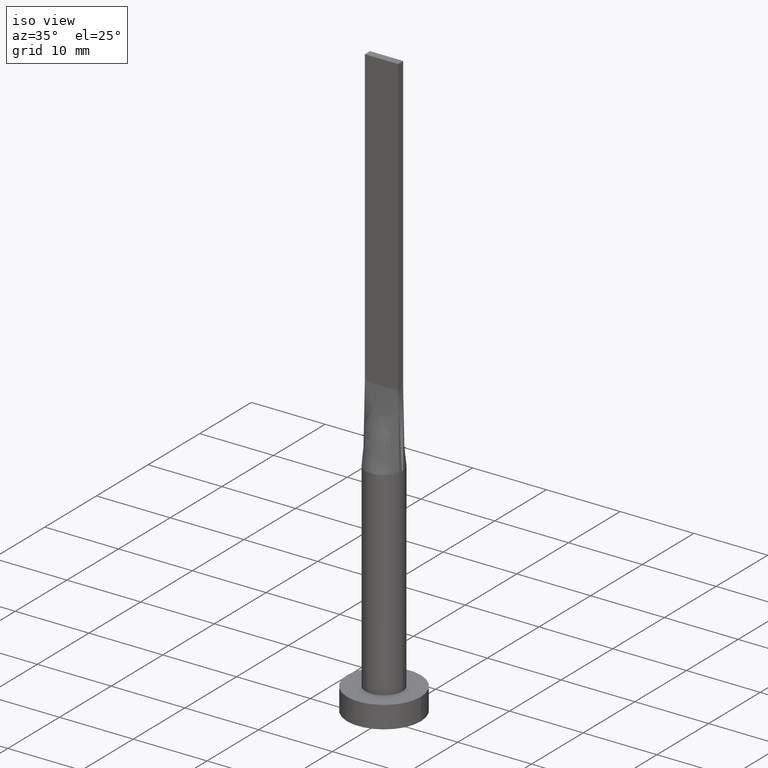
[diagram: clean part render]
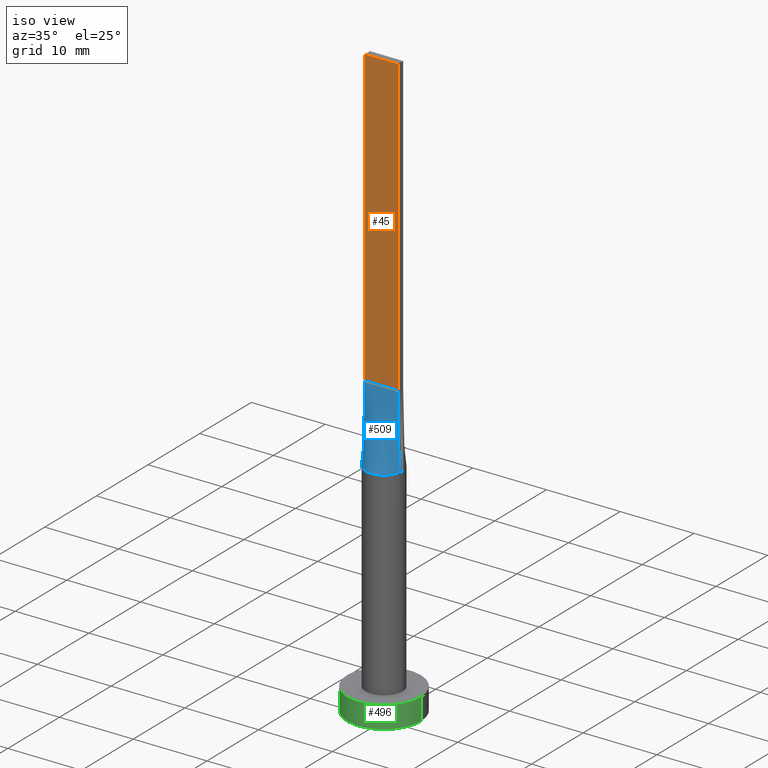
[diagram: same view with three faces highlighted in distinct colors, each labeled with its STEP entity id]
A machine part, iso view with three faces highlighted in distinct colors.
Their STEP definitions:

[orange] entity #45 — the highlighted planar face has unit normal (0, 1, -0).
#7 = CARTESIAN_POINT ( 'NONE',  ( 2.250000000000000000, -0.4999999999999997780, 80.00000000000000000 ) ) ;
#27 = CARTESIAN_POINT ( 'NONE',  ( -2.250000000000000000, -0.4999999999999994449, 80.00000000000000000 ) ) ;
#36 = DIRECTION ( 'NONE',  ( 7.228014483236697048E-17, 1.000000000000000000, -0.000000000000000000 ) ) ;
#45 = ADVANCED_FACE ( 'NONE', ( #409 ), #163, .F. ) ;
#115 = VERTEX_POINT ( 'NONE', #7 ) ;
#131 = AXIS2_PLACEMENT_3D ( 'NONE', #220, #36, #176 ) ;
#132 = DIRECTION ( 'NONE',  ( -0.000000000000000000, -0.000000000000000000, -1.000000000000000000 ) ) ;
#163 = PLANE ( 'NONE',  #131 ) ;
#164 = VECTOR ( 'NONE', #455, 1000.000000000000000 ) ;
#165 = LINE ( 'NONE', #575, #375 ) ;
#176 = DIRECTION ( 'NONE',  ( -1.000000000000000000, 7.228014483236697048E-17, 0.000000000000000000 ) ) ;
#197 = LINE ( 'NONE', #387, #204 ) ;
#204 = VECTOR ( 'NONE', #563, 1000.000000000000000 ) ;
#220 = CARTESIAN_POINT ( 'NONE',  ( -2.250000000000000000, -0.4999999999999994449, 80.00000000000000000 ) ) ;
#260 = VERTEX_POINT ( 'NONE', #384 ) ;
#289 = EDGE_CURVE ( 'NONE', #351, #115, #197, .T. ) ;
#351 = VERTEX_POINT ( 'NONE', #27 ) ;
#355 = DIRECTION ( 'NONE',  ( -0.000000000000000000, -0.000000000000000000, -1.000000000000000000 ) ) ;
#366 = EDGE_CURVE ( 'NONE', #115, #260, #447, .T. ) ;
#375 = VECTOR ( 'NONE', #355, 1000.000000000000000 ) ;
#384 = CARTESIAN_POINT ( 'NONE',  ( 2.250000000000000000, -0.4999999999999997780, 40.00000000000000000 ) ) ;
#385 = EDGE_CURVE ( 'NONE', #531, #260, #402, .T. ) ;
#387 = CARTESIAN_POINT ( 'NONE',  ( -2.250000000000000000, -0.4999999999999994449, 80.00000000000000000 ) ) ;
#402 = LINE ( 'NONE', #538, #164 ) ;
#409 = FACE_OUTER_BOUND ( 'NONE', #494, .T. ) ;
#434 = ORIENTED_EDGE ( 'NONE', *, *, #289, .F. ) ;
#447 = LINE ( 'NONE', #504, #539 ) ;
#455 = DIRECTION ( 'NONE',  ( 1.000000000000000000, -7.228014483236697048E-17, 0.000000000000000000 ) ) ;
#488 = ORIENTED_EDGE ( 'NONE', *, *, #366, .F. ) ;
#492 = CARTESIAN_POINT ( 'NONE',  ( -2.250000000000000000, -0.4999999999999994449, 40.00000000000000000 ) ) ;
#494 = EDGE_LOOP ( 'NONE', ( #574, #488, #434, #527 ) ) ;
#504 = CARTESIAN_POINT ( 'NONE',  ( 2.250000000000000000, -0.4999999999999997780, 80.00000000000000000 ) ) ;
#527 = ORIENTED_EDGE ( 'NONE', *, *, #571, .T. ) ;
#531 = VERTEX_POINT ( 'NONE', #492 ) ;
#538 = CARTESIAN_POINT ( 'NONE',  ( -2.250000000000000000, -0.4999999999999994449, 40.00000000000000000 ) ) ;
#539 = VECTOR ( 'NONE', #132, 1000.000000000000000 ) ;
#563 = DIRECTION ( 'NONE',  ( 1.000000000000000000, -7.228014483236697048E-17, 0.000000000000000000 ) ) ;
#571 = EDGE_CURVE ( 'NONE', #351, #531, #165, .T. ) ;
#574 = ORIENTED_EDGE ( 'NONE', *, *, #385, .T. ) ;
#575 = CARTESIAN_POINT ( 'NONE',  ( -2.250000000000000000, -0.4999999999999994449, 80.00000000000000000 ) ) ;

[blue] entity #509 — the highlighted face is a freeform B-spline surface patch.
#6 = CARTESIAN_POINT ( 'NONE',  ( 0.000000000000000000, 0.000000000000000000, 30.00000000000000000 ) ) ;
#11 = CARTESIAN_POINT ( 'NONE',  ( 2.440706242928429415, -0.5423794613208688942, 30.00000000000000000 ) ) ;
#14 = CIRCLE ( 'NONE', #331, 2.500000000000000000 ) ;
#20 = CARTESIAN_POINT ( 'NONE',  ( -0.9375000000000006661, -0.4999999999999995559, 39.99999999999999289 ) ) ;
#21 = CARTESIAN_POINT ( 'NONE',  ( -2.345233825229941171, -0.5211630722733197052, 35.00000000000000000 ) ) ;
#22 = EDGE_LOOP ( 'NONE', ( #403, #395, #59, #483 ) ) ;
#23 = CARTESIAN_POINT ( 'NONE',  ( 2.093723281432890548, -1.388001797188530340, 29.99999999999999645 ) ) ;
#58 = CARTESIAN_POINT ( 'NONE',  ( 0.9374999999999997780, -0.4999999999999995559, 39.99999999999999289 ) ) ;
#59 = ORIENTED_EDGE ( 'NONE', *, *, #385, .F. ) ;
#60 = CARTESIAN_POINT ( 'NONE',  ( -1.935644909179609297, -1.608159499248284829, 30.00000000000000711 ) ) ;
#68 = CARTESIAN_POINT ( 'NONE',  ( -1.260416918790969509, -2.182794756967427752, 29.99999999999999645 ) ) ;
#70 = CARTESIAN_POINT ( 'NONE',  ( 0.3749999999999998890, -0.4999999999999995559, 39.99999999999999289 ) ) ;
#73 = VECTOR ( 'NONE', #482, 1000.000000000000000 ) ;
#99 = CARTESIAN_POINT ( 'NONE',  ( -2.440688158044365785, -0.5423755258804862089, 30.00000000000000000 ) ) ;
#101 = CARTESIAN_POINT ( 'NONE',  ( 0.6674771052374466329, -2.430579781493059865, 29.99999999999999289 ) ) ;
#102 = EDGE_CURVE ( 'NONE', #564, #260, #336, .T. ) ;
#103 = CARTESIAN_POINT ( 'NONE',  ( 2.345233825229940727, -0.5211630722733201493, 35.00000000000000000 ) ) ;
#104 = CARTESIAN_POINT ( 'NONE',  ( -1.500000000000000444, -0.4999999999999995559, 39.99999999999999289 ) ) ;
#111 = VERTEX_POINT ( 'NONE', #99 ) ;
#117 = CARTESIAN_POINT ( 'NONE',  ( 1.312499999999999778, -0.4999999999999996669, 39.99999999999999289 ) ) ;
#149 = CARTESIAN_POINT ( 'NONE',  ( -2.062500000000000000, -0.4999999999999995559, 40.00000000000000000 ) ) ;
#152 = CARTESIAN_POINT ( 'NONE',  ( 1.875000000000000000, -0.4999999999999997780, 39.99999999999999289 ) ) ;
#157 = CARTESIAN_POINT ( 'NONE',  ( 1.519400572660313031, -2.006070808634367264, 30.00000000000000711 ) ) ;
#160 = CARTESIAN_POINT ( 'NONE',  ( 2.323660390030917178, -0.9543733860570838834, 30.00000000000001066 ) ) ;
#164 = VECTOR ( 'NONE', #455, 1000.000000000000000 ) ;
#178 = DIRECTION ( 'NONE',  ( 0.000000000000000000, 0.000000000000000000, 1.000000000000000000 ) ) ;
#181 = DIRECTION ( 'NONE',  ( -0.01904314058352514841, 0.004231809018561172135, 0.9998097071888962795 ) ) ;
#192 = FACE_OUTER_BOUND ( 'NONE', #22, .T. ) ;
#196 = CARTESIAN_POINT ( 'NONE',  ( -0.7500000000000006661, -0.4999999999999995559, 39.99999999999999289 ) ) ;
#199 = CARTESIAN_POINT ( 'NONE',  ( -2.440467650459882343, -0.5423261445466400765, 30.00000000000000000 ) ) ;
#201 = CARTESIAN_POINT ( 'NONE',  ( 0.3342381693191144310, -2.500000000000000444, 30.00000000000000355 ) ) ;
#202 = VECTOR ( 'NONE', #181, 1000.000000000000000 ) ;
#229 = EDGE_CURVE ( 'NONE', #531, #111, #305, .T. ) ;
#241 = CARTESIAN_POINT ( 'NONE',  ( 2.250000000000000000, -0.4999999999999997780, 40.00000000000000000 ) ) ;
#244 = CARTESIAN_POINT ( 'NONE',  ( -2.093723281432891881, -1.388001797188529007, 30.00000000000000000 ) ) ;
#251 = CARTESIAN_POINT ( 'NONE',  ( -0.1874999999999999445, -0.4999999999999995559, 39.99999999999999289 ) ) ;
#260 = VERTEX_POINT ( 'NONE', #384 ) ;
#296 = CARTESIAN_POINT ( 'NONE',  ( 1.260416918790968399, -2.182794756967428640, 29.99999999999999645 ) ) ;
#301 = CARTESIAN_POINT ( 'NONE',  ( -1.875000000000000444, -0.4999999999999995559, 40.00000000000000000 ) ) ;
#305 = LINE ( 'NONE', #21, #73 ) ;
#331 = AXIS2_PLACEMENT_3D ( 'NONE', #6, #178, #377 ) ;
#336 = LINE ( 'NONE', #103, #202 ) ;
#342 = CARTESIAN_POINT ( 'NONE',  ( -2.323660390030918066, -0.9543733860570832173, 30.00000000000000711 ) ) ;
#346 = CARTESIAN_POINT ( 'NONE',  ( 2.396350003401058082, -0.7408555563113468079, 30.00000000000000000 ) ) ;
#352 = CARTESIAN_POINT ( 'NONE',  ( 1.935644909179608852, -1.608159499248284829, 30.00000000000000711 ) ) ;
#377 = DIRECTION ( 'NONE',  ( 1.000000000000000000, 0.000000000000000000, 0.000000000000000000 ) ) ;
#382 = CARTESIAN_POINT ( 'NONE',  ( -2.396350003401058970, -0.7408555563113458087, 30.00000000000000355 ) ) ;
#384 = CARTESIAN_POINT ( 'NONE',  ( 2.250000000000000000, -0.4999999999999997780, 40.00000000000000000 ) ) ;
#385 = EDGE_CURVE ( 'NONE', #531, #260, #402, .T. ) ;
#386 = CARTESIAN_POINT ( 'NONE',  ( -0.6674771052374477431, -2.430579781493059865, 30.00000000000000000 ) ) ;
#389 = CARTESIAN_POINT ( 'NONE',  ( 1.499999999999999778, -0.4999999999999997780, 39.99999999999999289 ) ) ;
#393 = CARTESIAN_POINT ( 'NONE',  ( 0.1875000000000000555, -0.4999999999999995559, 39.99999999999999289 ) ) ;
#395 = ORIENTED_EDGE ( 'NONE', *, *, #102, .T. ) ;
#402 = LINE ( 'NONE', #538, #164 ) ;
#403 = ORIENTED_EDGE ( 'NONE', *, *, #436, .T. ) ;
#425 = CARTESIAN_POINT ( 'NONE',  ( 2.062499999999999556, -0.4999999999999997780, 39.99999999999999289 ) ) ;
#431 = CARTESIAN_POINT ( 'NONE',  ( -1.519400572660313919, -2.006070808634366820, 30.00000000000000355 ) ) ;
#436 = EDGE_CURVE ( 'NONE', #111, #564, #14, .T. ) ;
#455 = DIRECTION ( 'NONE',  ( 1.000000000000000000, -7.228014483236697048E-17, 0.000000000000000000 ) ) ;
#477 = CARTESIAN_POINT ( 'NONE',  ( -1.312500000000000444, -0.4999999999999995559, 39.99999999999999289 ) ) ;
#482 = DIRECTION ( 'NONE',  ( -0.01904314058352519351, -0.004231809018561160859, -0.9998097071888962795 ) ) ;
#483 = ORIENTED_EDGE ( 'NONE', *, *, #229, .T. ) ;
#491 = B_SPLINE_SURFACE_WITH_KNOTS ( 'NONE', 3, 1, ( 
 ( #199, #528 ),
 ( #382, #149 ),
 ( #342, #301 ),
 ( #244, #104 ),
 ( #60, #477 ),
 ( #431, #20 ),
 ( #68, #196 ),
 ( #386, #562 ),
 ( #565, #251 ),
 ( #201, #393 ),
 ( #101, #70 ),
 ( #296, #569 ),
 ( #157, #58 ),
 ( #352, #117 ),
 ( #23, #389 ),
 ( #160, #152 ),
 ( #346, #425 ),
 ( #572, #241 ) ),
 .UNSPECIFIED., .F., .F., .F.,
 ( 4, 2, 2, 2, 2, 2, 2, 2, 4 ),
 ( 2, 2 ),
 ( 0.000000000000000000, 0.1249999999999999167, 0.2499999999999998335, 0.3749999999999998335, 0.4999999999999998890, 0.6249999999999998890, 0.7499999999999998890, 0.8750000000000000000, 1.000000000000000000 ),
 ( 0.000000000000000000, 1.000000000000000000 ),
 .UNSPECIFIED. ) ;
#492 = CARTESIAN_POINT ( 'NONE',  ( -2.250000000000000000, -0.4999999999999994449, 40.00000000000000000 ) ) ;
#509 = ADVANCED_FACE ( 'NONE', ( #192 ), #491, .T. ) ;
#528 = CARTESIAN_POINT ( 'NONE',  ( -2.250000000000000000, -0.4999999999999994449, 40.00000000000000000 ) ) ;
#531 = VERTEX_POINT ( 'NONE', #492 ) ;
#538 = CARTESIAN_POINT ( 'NONE',  ( -2.250000000000000000, -0.4999999999999994449, 40.00000000000000000 ) ) ;
#562 = CARTESIAN_POINT ( 'NONE',  ( -0.3750000000000002220, -0.4999999999999995559, 39.99999999999999289 ) ) ;
#564 = VERTEX_POINT ( 'NONE', #11 ) ;
#565 = CARTESIAN_POINT ( 'NONE',  ( -0.3342381693191159853, -2.499999999999999556, 30.00000000000000711 ) ) ;
#569 = CARTESIAN_POINT ( 'NONE',  ( 0.7499999999999996669, -0.4999999999999995559, 39.99999999999999289 ) ) ;
#572 = CARTESIAN_POINT ( 'NONE',  ( 2.440467650459881899, -0.5423261445466405206, 30.00000000000000000 ) ) ;

[green] entity #496 — the highlighted cylindrical surface (partial cylindrical patch) has radius 5 mm, axis along (-0, -0, -1).
#5 = VERTEX_POINT ( 'NONE', #221 ) ;
#26 = DIRECTION ( 'NONE',  ( -0.000000000000000000, -0.000000000000000000, -1.000000000000000000 ) ) ;
#38 = DIRECTION ( 'NONE',  ( 1.000000000000000000, 0.000000000000000000, 0.000000000000000000 ) ) ;
#40 = ORIENTED_EDGE ( 'NONE', *, *, #373, .T. ) ;
#52 = EDGE_CURVE ( 'NONE', #427, #5, #295, .T. ) ;
#76 = VERTEX_POINT ( 'NONE', #168 ) ;
#88 = DIRECTION ( 'NONE',  ( -0.000000000000000000, -0.000000000000000000, -1.000000000000000000 ) ) ;
#89 = CIRCLE ( 'NONE', #432, 5.000000000000000000 ) ;
#92 = DIRECTION ( 'NONE',  ( -0.000000000000000000, -0.000000000000000000, -1.000000000000000000 ) ) ;
#127 = DIRECTION ( 'NONE',  ( 1.000000000000000000, 0.000000000000000000, 0.000000000000000000 ) ) ;
#168 = CARTESIAN_POINT ( 'NONE',  ( -5.000000000000000000, 0.000000000000000000, 0.000000000000000000 ) ) ;
#171 = CARTESIAN_POINT ( 'NONE',  ( 0.000000000000000000, 0.000000000000000000, 0.000000000000000000 ) ) ;
#187 = CARTESIAN_POINT ( 'NONE',  ( -5.000000000000000000, 0.000000000000000000, 3.000000000000000000 ) ) ;
#193 = CARTESIAN_POINT ( 'NONE',  ( 5.000000000000000000, 6.123233995736766282E-16, 0.000000000000000000 ) ) ;
#211 = ORIENTED_EDGE ( 'NONE', *, *, #422, .T. ) ;
#217 = DIRECTION ( 'NONE',  ( 0.000000000000000000, 0.000000000000000000, 1.000000000000000000 ) ) ;
#221 = CARTESIAN_POINT ( 'NONE',  ( 5.000000000000000000, 6.123233995736766282E-16, 3.000000000000000000 ) ) ;
#253 = VERTEX_POINT ( 'NONE', #193 ) ;
#257 = VECTOR ( 'NONE', #92, 1000.000000000000000 ) ;
#258 = CARTESIAN_POINT ( 'NONE',  ( 5.000000000000000000, 6.123233995736766282E-16, 3.000000000000000000 ) ) ;
#272 = CARTESIAN_POINT ( 'NONE',  ( -5.000000000000000000, 0.000000000000000000, 3.000000000000000000 ) ) ;
#290 = ORIENTED_EDGE ( 'NONE', *, *, #52, .F. ) ;
#295 = CIRCLE ( 'NONE', #329, 5.000000000000000000 ) ;
#311 = ORIENTED_EDGE ( 'NONE', *, *, #568, .F. ) ;
#314 = LINE ( 'NONE', #258, #257 ) ;
#329 = AXIS2_PLACEMENT_3D ( 'NONE', #368, #359, #127 ) ;
#359 = DIRECTION ( 'NONE',  ( 0.000000000000000000, 0.000000000000000000, 1.000000000000000000 ) ) ;
#368 = CARTESIAN_POINT ( 'NONE',  ( 0.000000000000000000, 0.000000000000000000, 3.000000000000000000 ) ) ;
#373 = EDGE_CURVE ( 'NONE', #76, #253, #89, .T. ) ;
#422 = EDGE_CURVE ( 'NONE', #427, #76, #512, .T. ) ;
#427 = VERTEX_POINT ( 'NONE', #272 ) ;
#432 = AXIS2_PLACEMENT_3D ( 'NONE', #171, #217, #38 ) ;
#445 = AXIS2_PLACEMENT_3D ( 'NONE', #489, #26, #521 ) ;
#456 = EDGE_LOOP ( 'NONE', ( #311, #290, #211, #40 ) ) ;
#481 = FACE_OUTER_BOUND ( 'NONE', #456, .T. ) ;
#489 = CARTESIAN_POINT ( 'NONE',  ( 0.000000000000000000, 0.000000000000000000, 3.000000000000000000 ) ) ;
#496 = ADVANCED_FACE ( 'NONE', ( #481 ), #533, .T. ) ;
#512 = LINE ( 'NONE', #187, #580 ) ;
#521 = DIRECTION ( 'NONE',  ( -1.000000000000000000, 0.000000000000000000, 0.000000000000000000 ) ) ;
#533 = CYLINDRICAL_SURFACE ( 'NONE', #445, 5.000000000000000000 ) ;
#568 = EDGE_CURVE ( 'NONE', #5, #253, #314, .T. ) ;
#580 = VECTOR ( 'NONE', #88, 1000.000000000000000 ) ;